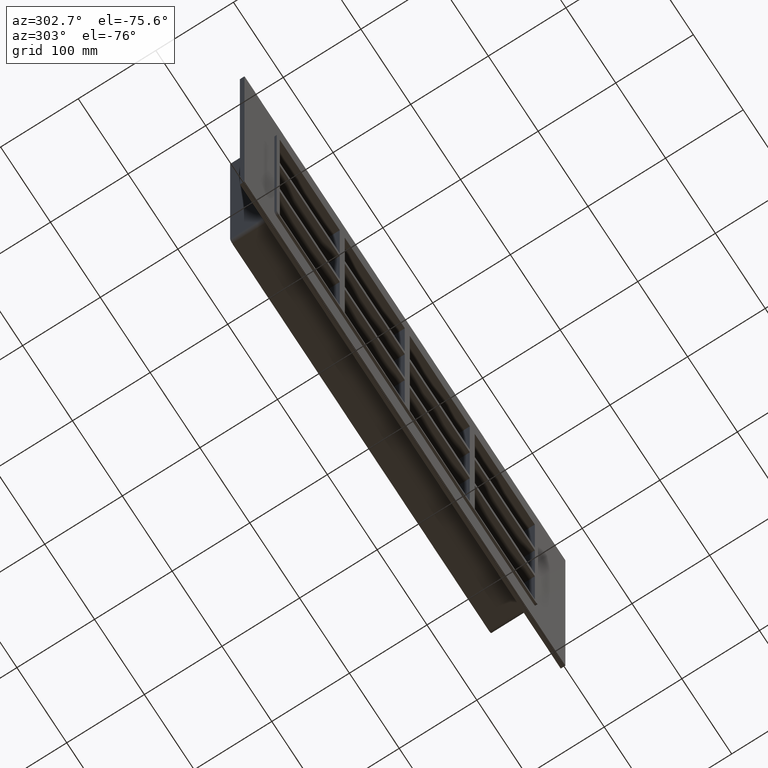
[diagram: clean part render]
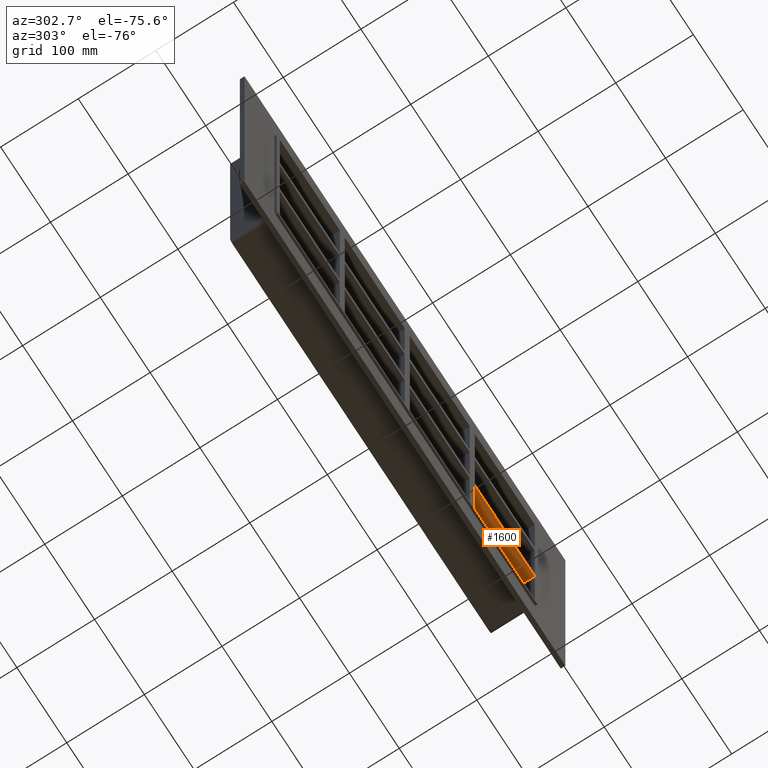
[diagram: same view with one face highlighted and labeled with its STEP entity id]
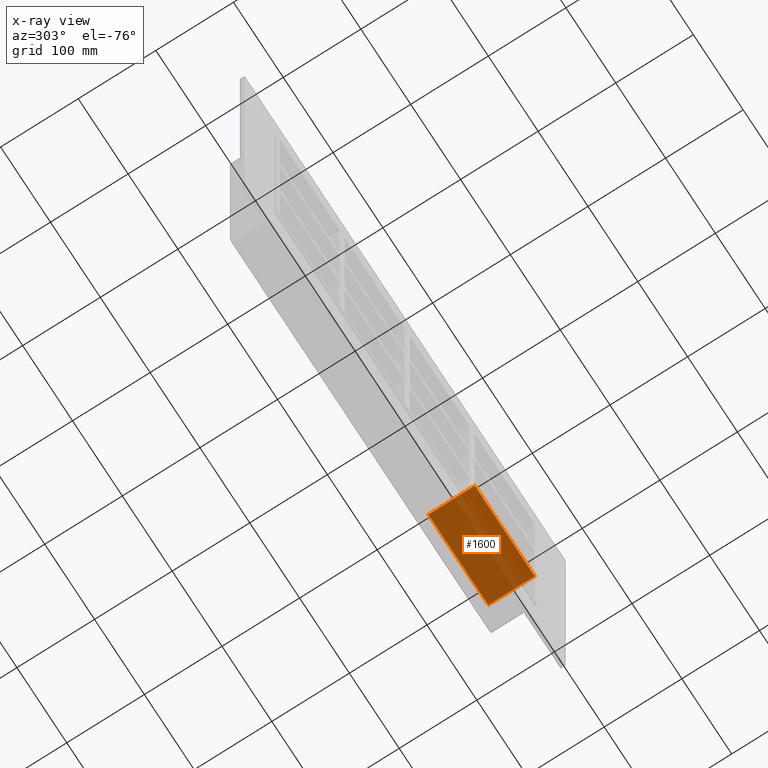
[diagram: x-ray of the same camera — body ghosted, the highlighted face saturated]
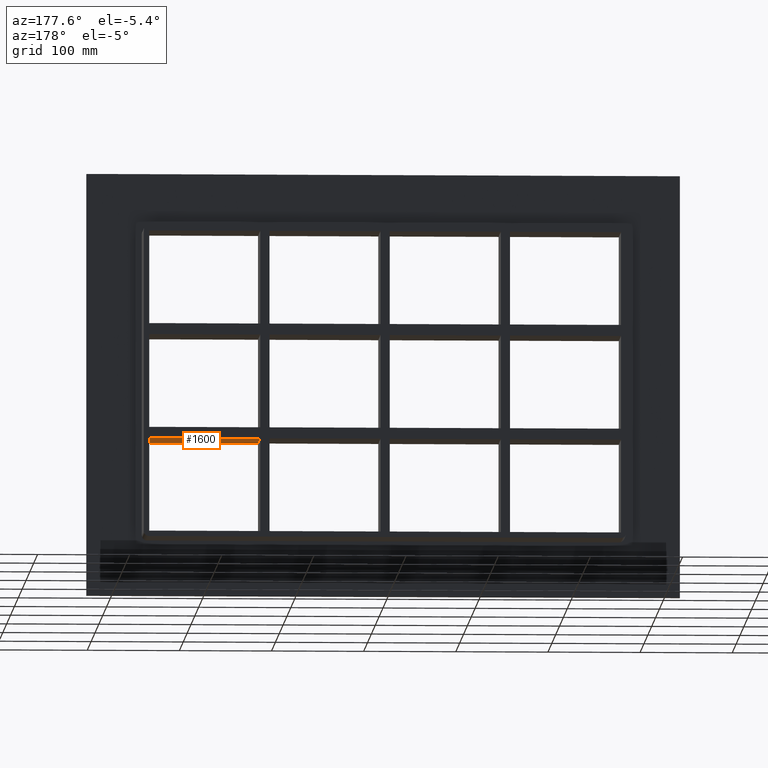
[diagram: same view with one face highlighted and labeled with its STEP entity id]
A machine part, auxiliary view. The second image highlights one B-rep face of the part: STEP entity #1600.
The next image is the same camera in x-ray: the body ghosted, the highlighted face saturated — about 77% of this face is hidden behind the body in this view.
A second angle (auxiliary view) of the same face is appended — the face is thin or edge-on in the first view.
In plain terms, the highlighted planar face has unit normal (0, 0, -1).
Its self-contained STEP definition (entity closure, byte-faithful):
#1015=CARTESIAN_POINT('',(256.00000000000358,57.0,-62.500000000009294));
#1016=VERTEX_POINT('',#1015);
#1023=CARTESIAN_POINT('',(135.50000000000728,57.0,-62.500000000009308));
#1024=VERTEX_POINT('',#1023);
#1025=CARTESIAN_POINT('',(256.00000000000364,57.0,-62.500000000009294));
#1026=DIRECTION('',(-1.0,0.0,0.0));
#1027=VECTOR('',#1026,120.49999999999636);
#1028=LINE('',#1025,#1027);
#1029=EDGE_CURVE('',#1016,#1024,#1028,.T.);
#1124=CARTESIAN_POINT('',(135.50000000000728,-3.0,-62.500000000009308));
#1125=VERTEX_POINT('',#1124);
#1126=CARTESIAN_POINT('',(135.50000000000728,-3.0,-62.500000000009301));
#1127=DIRECTION('',(0.0,1.0,0.0));
#1128=VECTOR('',#1127,60.0);
#1129=LINE('',#1126,#1128);
#1130=EDGE_CURVE('',#1125,#1024,#1129,.T.);
#1532=CARTESIAN_POINT('',(256.00000000000364,-3.0,-62.500000000009294));
#1533=VERTEX_POINT('',#1532);
#1534=CARTESIAN_POINT('',(256.00000000000364,-3.0,-62.500000000009294));
#1535=DIRECTION('',(-1.0,0.0,0.0));
#1536=VECTOR('',#1535,120.49999999999636);
#1537=LINE('',#1534,#1536);
#1538=EDGE_CURVE('',#1533,#1125,#1537,.T.);
#1584=CARTESIAN_POINT('',(256.00000000000364,-3.0,-62.500000000009294));
#1585=DIRECTION('',(0.0,0.0,-1.0));
#1586=DIRECTION('',(-1.0,0.0,0.0));
#1587=AXIS2_PLACEMENT_3D('',#1584,#1585,#1586);
#1588=PLANE('',#1587);
#1589=ORIENTED_EDGE('',*,*,#1130,.T.);
#1590=ORIENTED_EDGE('',*,*,#1029,.F.);
#1591=CARTESIAN_POINT('',(256.0,-3.0,-62.50000000000928));
#1592=DIRECTION('',(0.0,1.0,0.0));
#1593=VECTOR('',#1592,60.000000000000007);
#1594=LINE('',#1591,#1593);
#1595=EDGE_CURVE('',#1533,#1016,#1594,.T.);
#1596=ORIENTED_EDGE('',*,*,#1595,.F.);
#1597=ORIENTED_EDGE('',*,*,#1538,.T.);
#1598=EDGE_LOOP('',(#1589,#1590,#1596,#1597));
#1599=FACE_OUTER_BOUND('',#1598,.T.);
#1600=ADVANCED_FACE('',(#1599),#1588,.T.);